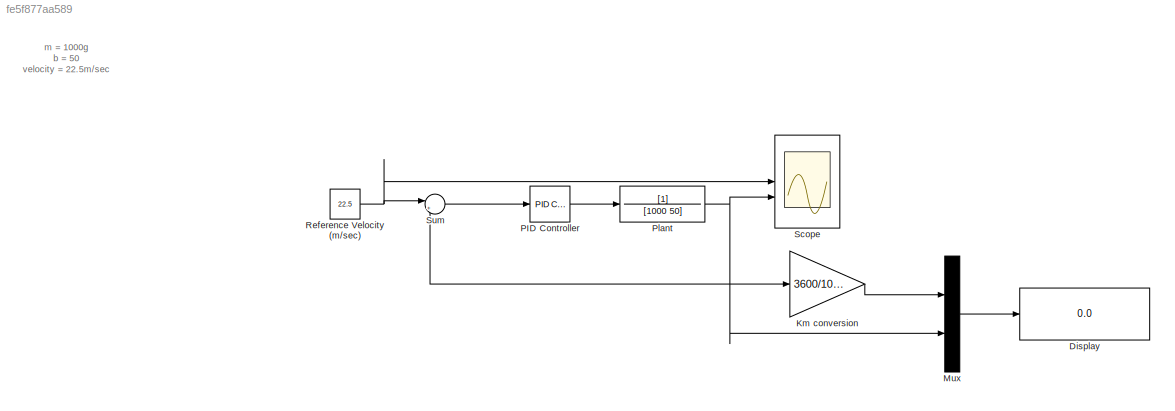
MODEL slx_fe5f877aa589
KIND model
CONFIG AbsTol = auto
CONFIG EnableMultiTasking = off
CONFIG FixedStep = auto
CONFIG MaxStep = auto
CONFIG MinStep = auto
CONFIG RelTol = 1e-3
CONFIG SampleTimeConstraint = Unconstrained
CONFIG SolverName = VariableStepAuto
CONFIG StartTime = 0.0
CONFIG StopTime = 10.0
BLOCK [Display] Display
  Decimation = 1
BLOCK [Gain] Km conversion
  Gain = 3600/1000
BLOCK [Mux] Mux
  DisplayOption = bar
  Inputs = 2
BLOCK [Reference] PID Controller  REF=slpidlib/PID Controller
  LibrarySourceBlock = simulink/Continuous/PID Controller
  SourceBlock = slpidlib/PID Controller
  SourceType = PID 1dof
BLOCK [TransferFcn] Plant
  Denominator = [1000 50]
BLOCK [Constant] Reference Velocity (m//sec) 
  Value = 22.5
BLOCK [Scope] Scope
  Floating = off
  NumInputPorts = 2
  ScopeSpecificationString = Simulink.scopes.TimeScopeBlockCfg('CurrentConfiguration', extmgr.ConfigurationSet(extmgr.Configuration('Core','General UI',true),extmgr.Configuration('Core','Source UI',true),extmgr.Configuration('Sources','WiredSimulink',true),extmgr.Configuration('Visuals','Time Domain',true,'SerializedDisplays',{struct('MinYLimReal','-2.8399','MaxYLimReal','25.55906','YLabelReal','','MinYLimMag','0.00000','MaxY...<+1446ch>
BLOCK [Sum] Sum
  Inputs = |+-
ANNOTATION (root): m = 1000g b = 50 velocity = 22.5m/sec
LINE Km conversion:1 -> Mux:1
LINE Mux:1 -> Display:1
LINE PID Controller:1 -> Plant:1
NET Plant:1 -> Km conversion:1, Mux:2, Scope:2, Sum:2
NET Reference Velocity (m//sec) :1 -> Scope:1, Sum:1
LINE Sum:1 -> PID Controller:1
note: NET lines group one-source signal fan-out (src -> all destinations, sorted); 1:1 wires keep LINE
